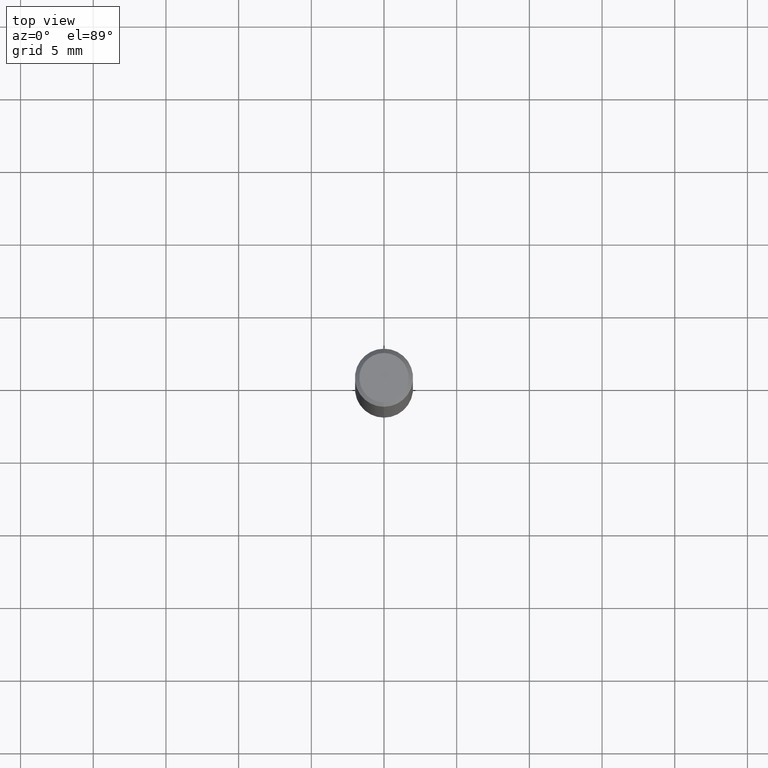
[diagram: clean part render]
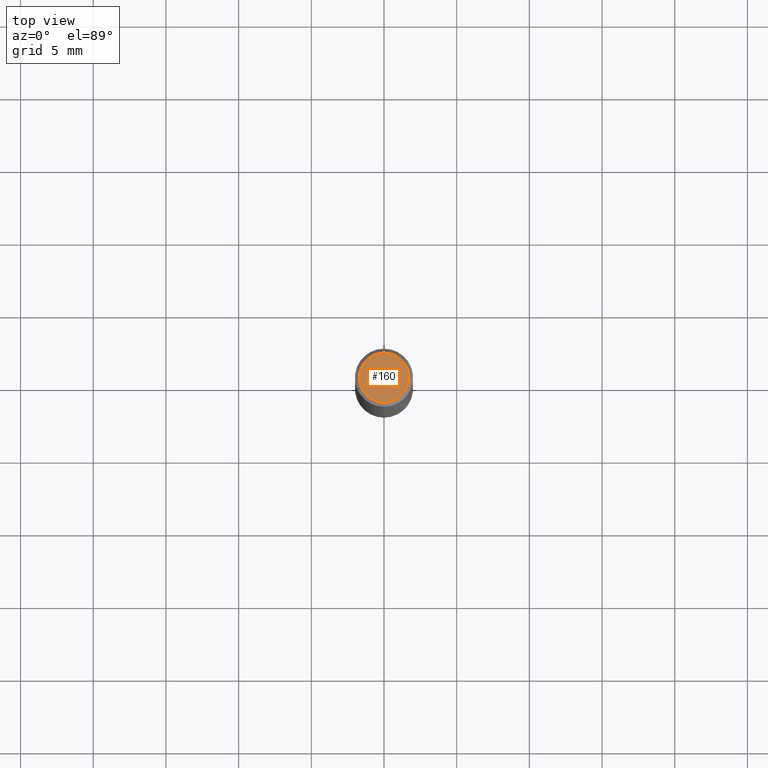
[diagram: same view with one face highlighted and labeled with its STEP entity id]
A machine part, top view. The second image highlights one B-rep face of the part: STEP entity #160.
In plain terms, the highlighted planar face has unit normal (-0, 0, 1).
Its self-contained STEP definition (entity closure, byte-faithful):
#114=EDGE_CURVE('',#138,#142,#242,.T.);
#126=EDGE_CURVE('',#142,#138,#256,.T.);
#138=VERTEX_POINT('',#271);
#142=VERTEX_POINT('',#275);
#160=ADVANCED_FACE('',(#295),#296,.T.);
#242=CIRCLE('',#383,1.7);
#256=CIRCLE('',#401,1.7);
#271=CARTESIAN_POINT('',(2.08183080149804E-016,-1.7,0.0));
#275=CARTESIAN_POINT('',(0.0,1.7,0.0));
#295=FACE_OUTER_BOUND('',#452,.T.);
#296=PLANE('',#453);
#383=AXIS2_PLACEMENT_3D('',#529,#530,#531);
#401=AXIS2_PLACEMENT_3D('',#552,#553,#554);
#452=EDGE_LOOP('',(#603,#604));
#453=AXIS2_PLACEMENT_3D('',#605,#606,#607);
#529=CARTESIAN_POINT('',(0.0,0.0,0.0));
#530=DIRECTION('',(0.0,0.0,-1.0));
#531=DIRECTION('',(0.0,1.0,0.0));
#552=CARTESIAN_POINT('',(0.0,0.0,0.0));
#553=DIRECTION('',(0.0,0.0,-1.0));
#554=DIRECTION('',(0.0,1.0,0.0));
#603=ORIENTED_EDGE('',*,*,#126,.F.);
#604=ORIENTED_EDGE('',*,*,#114,.F.);
#605=CARTESIAN_POINT('',(0.0,0.85,0.0));
#606=DIRECTION('',(-0.0,0.0,1.0));
#607=DIRECTION('',(0.0,-1.0,0.0));